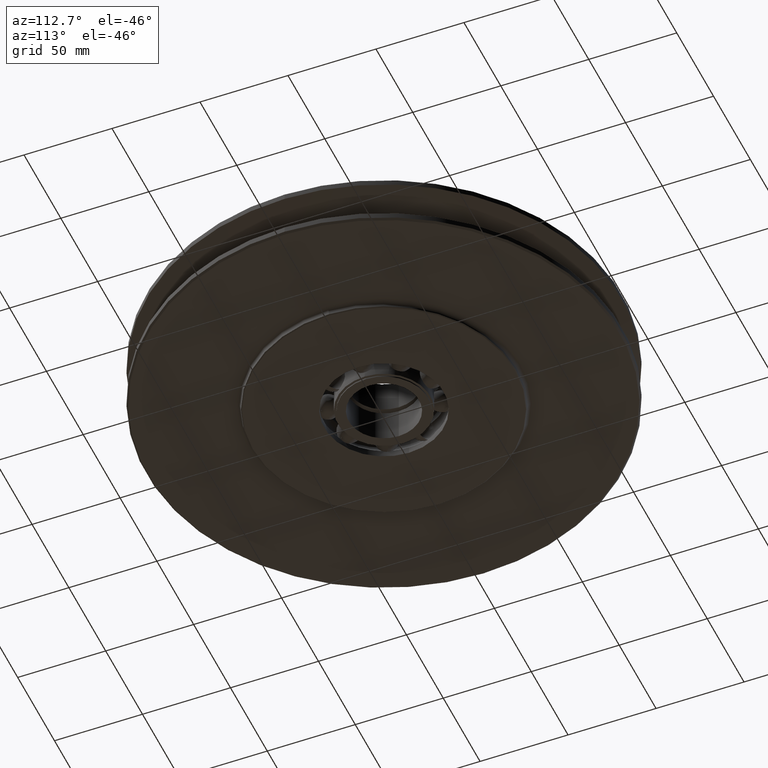
[diagram: clean part render]
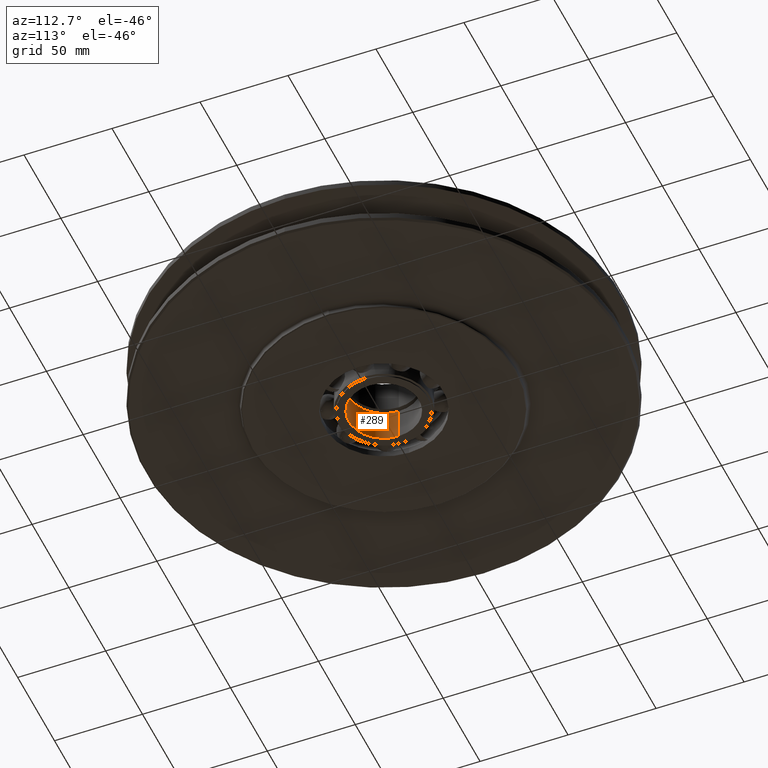
[diagram: same view with one face highlighted and labeled with its STEP entity id]
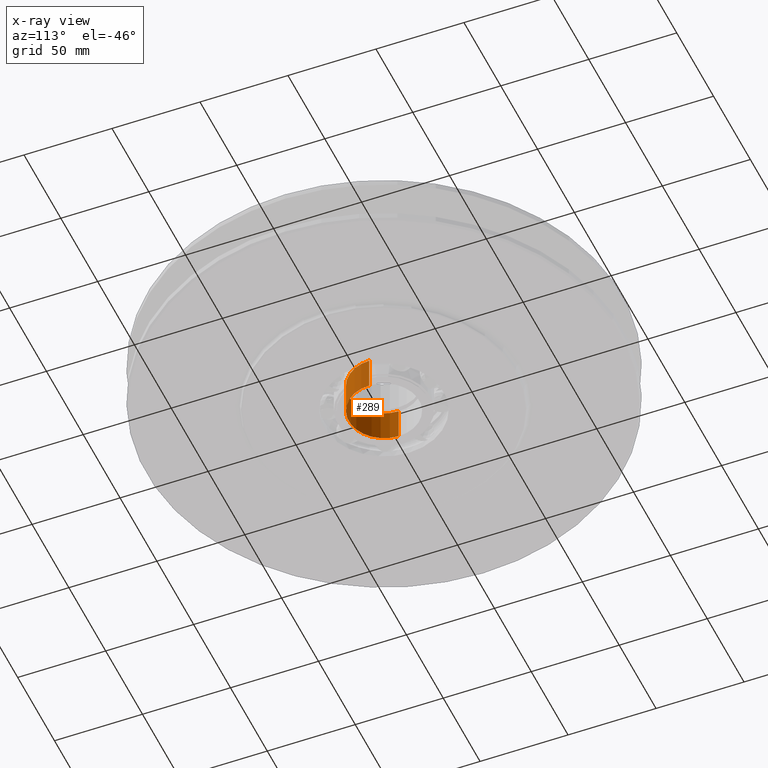
[diagram: x-ray of the same camera — body ghosted, the highlighted face saturated]
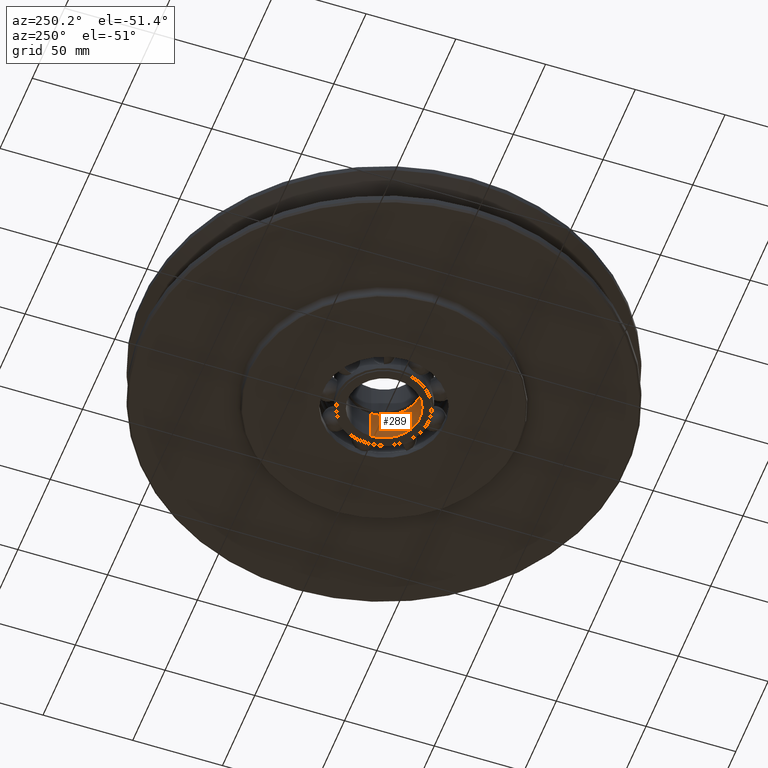
[diagram: same view with one face highlighted and labeled with its STEP entity id]
A machine part, auxiliary view. The second image highlights one B-rep face of the part: STEP entity #289.
The next image is the same camera in x-ray: the body ghosted, the highlighted face saturated — about 0% of this face is hidden behind the body in this view.
A second angle (auxiliary view) of the same face is appended — the face is thin or edge-on in the first view.
In plain terms, the highlighted cylindrical surface (partial cylindrical patch) has radius 20 mm, axis along (0, 0, -1).
Its self-contained STEP definition (entity closure, byte-faithful):
#289=ADVANCED_FACE('',(#654),#655,.F.);
#654=FACE_OUTER_BOUND('',#1104,.T.);
#655=CYLINDRICAL_SURFACE('',#1105,20.0);
#1104=EDGE_LOOP('',(#2025,#2026,#2027,#2028));
#1105=AXIS2_PLACEMENT_3D('',#2029,#2030,#2031);
#2025=ORIENTED_EDGE('',*,*,#3225,.F.);
#2026=ORIENTED_EDGE('',*,*,#3226,.F.);
#2027=ORIENTED_EDGE('',*,*,#3227,.F.);
#2028=ORIENTED_EDGE('',*,*,#3228,.F.);
#2029=CARTESIAN_POINT('',(0.0,0.0,-10.5));
#2030=DIRECTION('',(0.0,0.0,-1.0));
#2031=DIRECTION('',(1.0,0.0,0.0));
#3225=EDGE_CURVE('',#4098,#4099,#4100,.T.);
#3226=EDGE_CURVE('',#4101,#4098,#4102,.T.);
#3227=EDGE_CURVE('',#4103,#4101,#4104,.T.);
#3228=EDGE_CURVE('',#4099,#4103,#4105,.T.);
#4098=VERTEX_POINT('',#8851);
#4099=VERTEX_POINT('',#8852);
#4100=LINE('',#8853,#8854);
#4101=VERTEX_POINT('',#8855);
#4102=CIRCLE('',#8856,20.0);
#4103=VERTEX_POINT('',#8857);
#4104=LINE('',#8858,#8859);
#4105=CIRCLE('',#8860,20.0);
#8851=CARTESIAN_POINT('',(20.0,0.0,-20.25));
#8852=CARTESIAN_POINT('',(20.0,0.0,-1.5));
#8853=CARTESIAN_POINT('',(20.0,2.44929359829471E-015,-10.5));
#8854=VECTOR('',#10972,1.0);
#8855=CARTESIAN_POINT('',(-20.0,-2.44929359829471E-015,-20.25));
#8856=AXIS2_PLACEMENT_3D('',#10973,#10974,#10975);
#8857=CARTESIAN_POINT('',(-20.0,-2.44929359829471E-015,-1.5));
#8858=CARTESIAN_POINT('',(-20.0,-2.44929359829471E-015,-10.5));
#8859=VECTOR('',#10976,1.0);
#8860=AXIS2_PLACEMENT_3D('',#10977,#10978,#10979);
#10972=DIRECTION('',(-0.0,-0.0,1.0));
#10973=CARTESIAN_POINT('',(0.0,0.0,-20.25));
#10974=DIRECTION('',(0.0,-0.0,1.0));
#10975=DIRECTION('',(1.0,0.0,0.0));
#10976=DIRECTION('',(-0.0,-0.0,-1.0));
#10977=CARTESIAN_POINT('',(0.0,0.0,-1.5));
#10978=DIRECTION('',(0.0,0.0,-1.0));
#10979=DIRECTION('',(1.0,0.0,0.0));